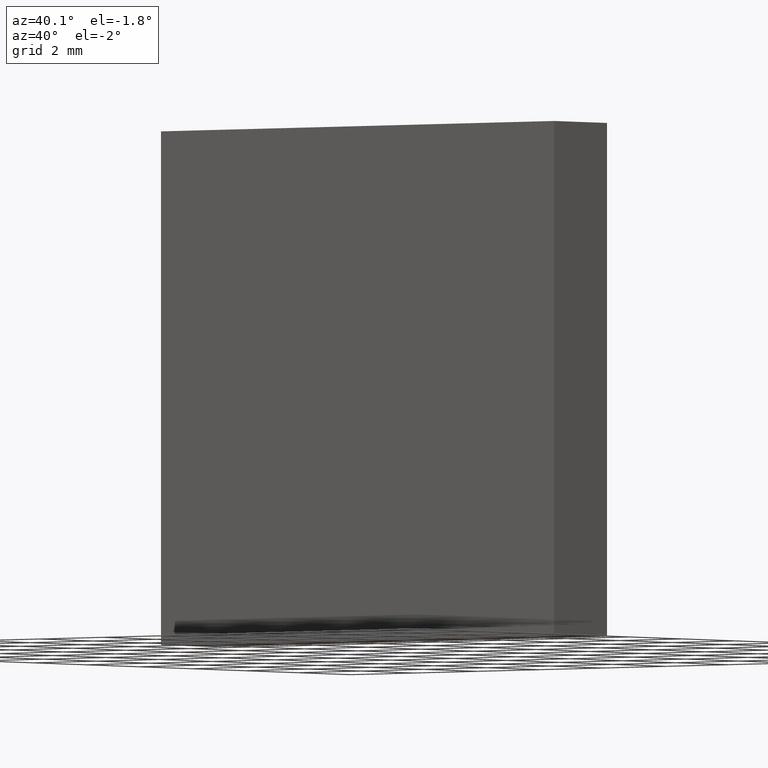
[diagram: clean part render]
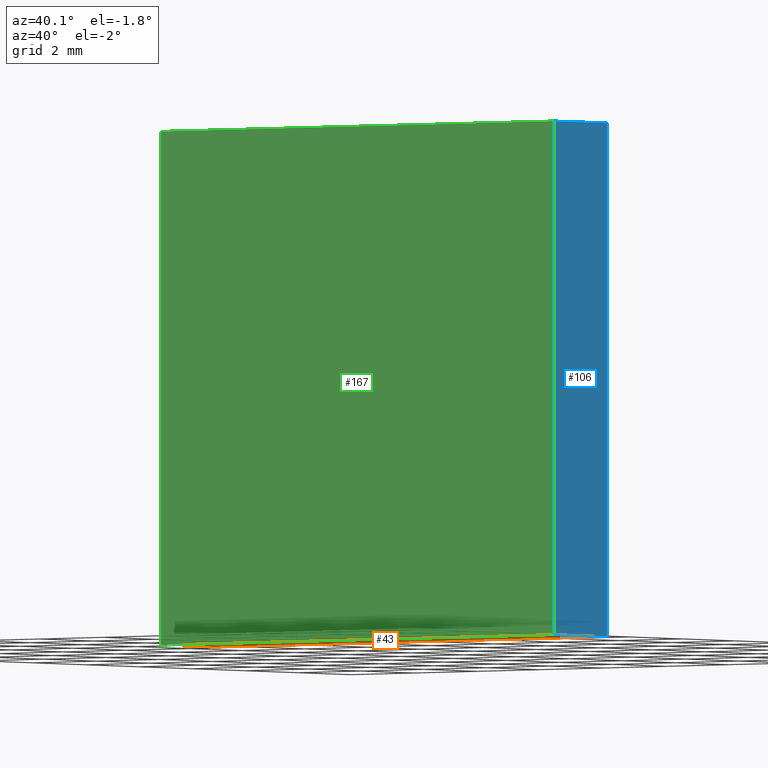
[diagram: same view with three faces highlighted in distinct colors, each labeled with its STEP entity id]
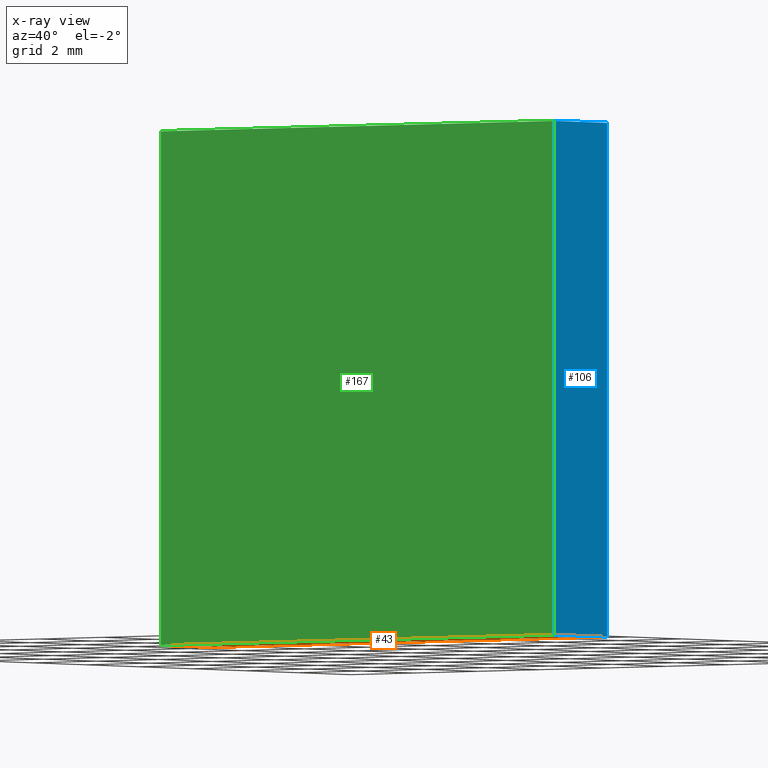
[diagram: x-ray of the same camera — body ghosted, the three highlighted faces saturated]
A machine part, auxiliary view with three faces highlighted in distinct colors.
The next image is the same camera in x-ray (body ghosted, the three faces saturated) — at least one of them is partly hidden behind the body in this view.
Their STEP definitions:

[orange] entity #43 — the highlighted planar face has unit normal (0, 0, 1).
#2 = FACE_OUTER_BOUND ( 'NONE', #91, .T. ) ;
#3 = AXIS2_PLACEMENT_3D ( 'NONE', #98, #193, #151 ) ;
#5 = DIRECTION ( 'NONE',  ( -1.000000000000000000, -0.0000000000000000000, -0.0000000000000000000 ) ) ;
#7 = ORIENTED_EDGE ( 'NONE', *, *, #73, .F. ) ;
#9 = VECTOR ( 'NONE', #32, 1000.000000000000000 ) ;
#25 = LINE ( 'NONE', #173, #50 ) ;
#28 = ORIENTED_EDGE ( 'NONE', *, *, #150, .T. ) ;
#29 = LINE ( 'NONE', #61, #189 ) ;
#32 = DIRECTION ( 'NONE',  ( -1.000000000000000000, -0.0000000000000000000, -0.0000000000000000000 ) ) ;
#35 = CARTESIAN_POINT ( 'NONE',  ( -6.250000000000002700, 0.0000000000000000000, -6.250000000000001800 ) ) ;
#40 = LINE ( 'NONE', #66, #9 ) ;
#43 = ADVANCED_FACE ( 'NONE', ( #2 ), #108, .F. ) ;
#48 = CARTESIAN_POINT ( 'NONE',  ( 6.249999999999997300, 2.000000000000000000, -6.250000000000001800 ) ) ;
#50 = VECTOR ( 'NONE', #65, 1000.000000000000000 ) ;
#54 = VERTEX_POINT ( 'NONE', #48 ) ;
#56 = LINE ( 'NONE', #117, #96 ) ;
#58 = ORIENTED_EDGE ( 'NONE', *, *, #101, .F. ) ;
#61 = CARTESIAN_POINT ( 'NONE',  ( -6.250000000000002700, 2.000000000000000000, -6.250000000000001800 ) ) ;
#65 = DIRECTION ( 'NONE',  ( -0.0000000000000000000, -1.000000000000000000, -0.0000000000000000000 ) ) ;
#66 = CARTESIAN_POINT ( 'NONE',  ( -6.250000000000002700, 0.0000000000000000000, -6.250000000000001800 ) ) ;
#71 = VERTEX_POINT ( 'NONE', #35 ) ;
#73 = EDGE_CURVE ( 'NONE', #54, #141, #29, .T. ) ;
#91 = EDGE_LOOP ( 'NONE', ( #28, #58, #7, #119 ) ) ;
#96 = VECTOR ( 'NONE', #188, 1000.000000000000000 ) ;
#98 = CARTESIAN_POINT ( 'NONE',  ( -6.250000000000002700, 2.000000000000000000, -6.250000000000001800 ) ) ;
#101 = EDGE_CURVE ( 'NONE', #141, #71, #56, .T. ) ;
#108 = PLANE ( 'NONE',  #3 ) ;
#117 = CARTESIAN_POINT ( 'NONE',  ( -6.250000000000002700, 2.000000000000000000, -6.250000000000001800 ) ) ;
#119 = ORIENTED_EDGE ( 'NONE', *, *, #174, .T. ) ;
#141 = VERTEX_POINT ( 'NONE', #158 ) ;
#150 = EDGE_CURVE ( 'NONE', #183, #71, #40, .T. ) ;
#151 = DIRECTION ( 'NONE',  ( 1.000000000000000000, 0.0000000000000000000, -0.0000000000000000000 ) ) ;
#158 = CARTESIAN_POINT ( 'NONE',  ( -6.250000000000002700, 2.000000000000000000, -6.250000000000001800 ) ) ;
#173 = CARTESIAN_POINT ( 'NONE',  ( 6.249999999999997300, 2.000000000000000000, -6.250000000000001800 ) ) ;
#174 = EDGE_CURVE ( 'NONE', #54, #183, #25, .T. ) ;
#183 = VERTEX_POINT ( 'NONE', #186 ) ;
#186 = CARTESIAN_POINT ( 'NONE',  ( 6.249999999999997300, 0.0000000000000000000, -6.250000000000001800 ) ) ;
#188 = DIRECTION ( 'NONE',  ( -0.0000000000000000000, -1.000000000000000000, -0.0000000000000000000 ) ) ;
#189 = VECTOR ( 'NONE', #5, 1000.000000000000000 ) ;
#193 = DIRECTION ( 'NONE',  ( 0.0000000000000000000, 0.0000000000000000000, 1.000000000000000000 ) ) ;

[blue] entity #106 — the highlighted planar face has unit normal (-1, 0, 0).
#8 = EDGE_CURVE ( 'NONE', #190, #111, #85, .T. ) ;
#24 = DIRECTION ( 'NONE',  ( -0.0000000000000000000, -1.000000000000000000, -0.0000000000000000000 ) ) ;
#25 = LINE ( 'NONE', #173, #50 ) ;
#26 = CARTESIAN_POINT ( 'NONE',  ( 6.249999999999997300, 0.0000000000000000000, -6.250000000000001800 ) ) ;
#30 = CARTESIAN_POINT ( 'NONE',  ( 6.249999999999997300, 2.000000000000000000, -6.250000000000001800 ) ) ;
#33 = EDGE_CURVE ( 'NONE', #190, #54, #169, .T. ) ;
#45 = VECTOR ( 'NONE', #24, 1000.000000000000000 ) ;
#48 = CARTESIAN_POINT ( 'NONE',  ( 6.249999999999997300, 2.000000000000000000, -6.250000000000001800 ) ) ;
#50 = VECTOR ( 'NONE', #65, 1000.000000000000000 ) ;
#54 = VERTEX_POINT ( 'NONE', #48 ) ;
#63 = EDGE_CURVE ( 'NONE', #111, #183, #80, .T. ) ;
#65 = DIRECTION ( 'NONE',  ( -0.0000000000000000000, -1.000000000000000000, -0.0000000000000000000 ) ) ;
#68 = DIRECTION ( 'NONE',  ( -1.000000000000000000, 0.0000000000000000000, 1.387778780781445700E-016 ) ) ;
#72 = DIRECTION ( 'NONE',  ( -1.387778780781445700E-016, -0.0000000000000000000, -1.000000000000000000 ) ) ;
#78 = CARTESIAN_POINT ( 'NONE',  ( 6.249999999999997300, 2.000000000000000000, -6.250000000000001800 ) ) ;
#80 = LINE ( 'NONE', #26, #161 ) ;
#85 = LINE ( 'NONE', #88, #45 ) ;
#88 = CARTESIAN_POINT ( 'NONE',  ( 6.249999999999999100, 2.000000000000000000, 6.249999999999998200 ) ) ;
#95 = CARTESIAN_POINT ( 'NONE',  ( 6.249999999999999100, 2.000000000000000000, 6.249999999999998200 ) ) ;
#104 = ORIENTED_EDGE ( 'NONE', *, *, #33, .F. ) ;
#106 = ADVANCED_FACE ( 'NONE', ( #132 ), #175, .F. ) ;
#111 = VERTEX_POINT ( 'NONE', #202 ) ;
#115 = ORIENTED_EDGE ( 'NONE', *, *, #8, .T. ) ;
#130 = ORIENTED_EDGE ( 'NONE', *, *, #174, .F. ) ;
#132 = FACE_OUTER_BOUND ( 'NONE', #134, .T. ) ;
#134 = EDGE_LOOP ( 'NONE', ( #166, #130, #104, #115 ) ) ;
#146 = AXIS2_PLACEMENT_3D ( 'NONE', #78, #68, #159 ) ;
#159 = DIRECTION ( 'NONE',  ( 1.387778780781445700E-016, 0.0000000000000000000, 1.000000000000000000 ) ) ;
#161 = VECTOR ( 'NONE', #72, 1000.000000000000000 ) ;
#165 = VECTOR ( 'NONE', #192, 1000.000000000000000 ) ;
#166 = ORIENTED_EDGE ( 'NONE', *, *, #63, .T. ) ;
#169 = LINE ( 'NONE', #30, #165 ) ;
#173 = CARTESIAN_POINT ( 'NONE',  ( 6.249999999999997300, 2.000000000000000000, -6.250000000000001800 ) ) ;
#174 = EDGE_CURVE ( 'NONE', #54, #183, #25, .T. ) ;
#175 = PLANE ( 'NONE',  #146 ) ;
#183 = VERTEX_POINT ( 'NONE', #186 ) ;
#186 = CARTESIAN_POINT ( 'NONE',  ( 6.249999999999997300, 0.0000000000000000000, -6.250000000000001800 ) ) ;
#190 = VERTEX_POINT ( 'NONE', #95 ) ;
#192 = DIRECTION ( 'NONE',  ( -1.387778780781445700E-016, -0.0000000000000000000, -1.000000000000000000 ) ) ;
#202 = CARTESIAN_POINT ( 'NONE',  ( 6.249999999999999100, 0.0000000000000000000, 6.249999999999998200 ) ) ;

[green] entity #167 — the highlighted planar face has unit normal (0, 1, 0).
#9 = VECTOR ( 'NONE', #32, 1000.000000000000000 ) ;
#21 = DIRECTION ( 'NONE',  ( 1.387778780781445700E-016, 0.0000000000000000000, 1.000000000000000000 ) ) ;
#26 = CARTESIAN_POINT ( 'NONE',  ( 6.249999999999997300, 0.0000000000000000000, -6.250000000000001800 ) ) ;
#32 = DIRECTION ( 'NONE',  ( -1.000000000000000000, -0.0000000000000000000, -0.0000000000000000000 ) ) ;
#35 = CARTESIAN_POINT ( 'NONE',  ( -6.250000000000002700, 0.0000000000000000000, -6.250000000000001800 ) ) ;
#36 = EDGE_LOOP ( 'NONE', ( #163, #128, #156, #177 ) ) ;
#39 = VECTOR ( 'NONE', #21, 1000.000000000000000 ) ;
#40 = LINE ( 'NONE', #66, #9 ) ;
#51 = CARTESIAN_POINT ( 'NONE',  ( 0.0000000000000000000, 0.0000000000000000000, 0.0000000000000000000 ) ) ;
#63 = EDGE_CURVE ( 'NONE', #111, #183, #80, .T. ) ;
#66 = CARTESIAN_POINT ( 'NONE',  ( -6.250000000000002700, 0.0000000000000000000, -6.250000000000001800 ) ) ;
#69 = EDGE_CURVE ( 'NONE', #71, #179, #127, .T. ) ;
#71 = VERTEX_POINT ( 'NONE', #35 ) ;
#72 = DIRECTION ( 'NONE',  ( -1.387778780781445700E-016, -0.0000000000000000000, -1.000000000000000000 ) ) ;
#76 = CARTESIAN_POINT ( 'NONE',  ( -6.250000000000000900, 0.0000000000000000000, 6.249999999999998200 ) ) ;
#77 = PLANE ( 'NONE',  #99 ) ;
#80 = LINE ( 'NONE', #26, #161 ) ;
#90 = EDGE_CURVE ( 'NONE', #179, #111, #162, .T. ) ;
#99 = AXIS2_PLACEMENT_3D ( 'NONE', #51, #114, #199 ) ;
#111 = VERTEX_POINT ( 'NONE', #202 ) ;
#114 = DIRECTION ( 'NONE',  ( 0.0000000000000000000, 1.000000000000000000, 0.0000000000000000000 ) ) ;
#118 = FACE_OUTER_BOUND ( 'NONE', #36, .T. ) ;
#127 = LINE ( 'NONE', #154, #39 ) ;
#128 = ORIENTED_EDGE ( 'NONE', *, *, #90, .F. ) ;
#129 = DIRECTION ( 'NONE',  ( 1.000000000000000000, 0.0000000000000000000, 0.0000000000000000000 ) ) ;
#150 = EDGE_CURVE ( 'NONE', #183, #71, #40, .T. ) ;
#154 = CARTESIAN_POINT ( 'NONE',  ( -6.250000000000002700, 0.0000000000000000000, -6.250000000000001800 ) ) ;
#155 = VECTOR ( 'NONE', #129, 1000.000000000000000 ) ;
#156 = ORIENTED_EDGE ( 'NONE', *, *, #69, .F. ) ;
#160 = CARTESIAN_POINT ( 'NONE',  ( -6.250000000000000900, 0.0000000000000000000, 6.249999999999998200 ) ) ;
#161 = VECTOR ( 'NONE', #72, 1000.000000000000000 ) ;
#162 = LINE ( 'NONE', #160, #155 ) ;
#163 = ORIENTED_EDGE ( 'NONE', *, *, #63, .F. ) ;
#167 = ADVANCED_FACE ( 'NONE', ( #118 ), #77, .F. ) ;
#177 = ORIENTED_EDGE ( 'NONE', *, *, #150, .F. ) ;
#179 = VERTEX_POINT ( 'NONE', #76 ) ;
#183 = VERTEX_POINT ( 'NONE', #186 ) ;
#186 = CARTESIAN_POINT ( 'NONE',  ( 6.249999999999997300, 0.0000000000000000000, -6.250000000000001800 ) ) ;
#199 = DIRECTION ( 'NONE',  ( 0.0000000000000000000, -0.0000000000000000000, 1.000000000000000000 ) ) ;
#202 = CARTESIAN_POINT ( 'NONE',  ( 6.249999999999999100, 0.0000000000000000000, 6.249999999999998200 ) ) ;